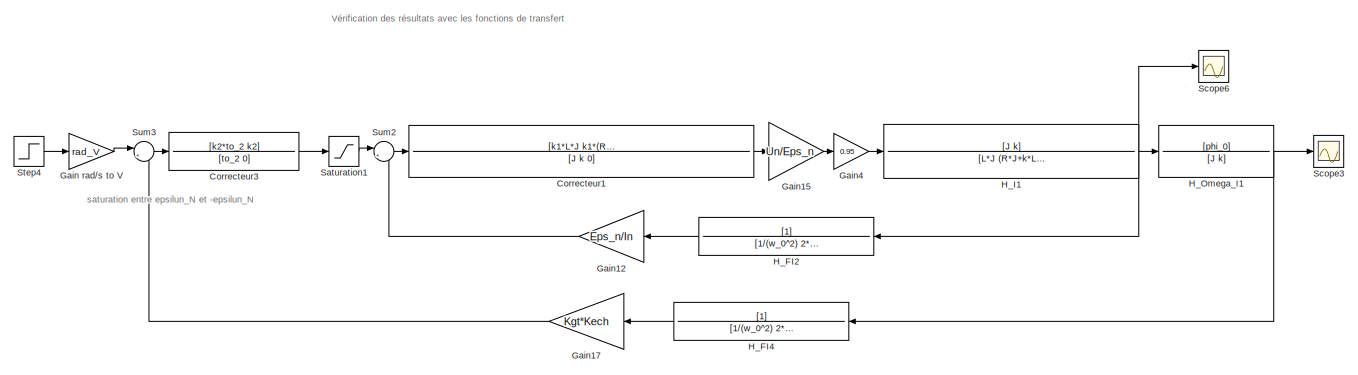
[diagram: root canvas - part 1/2, full width, top band]
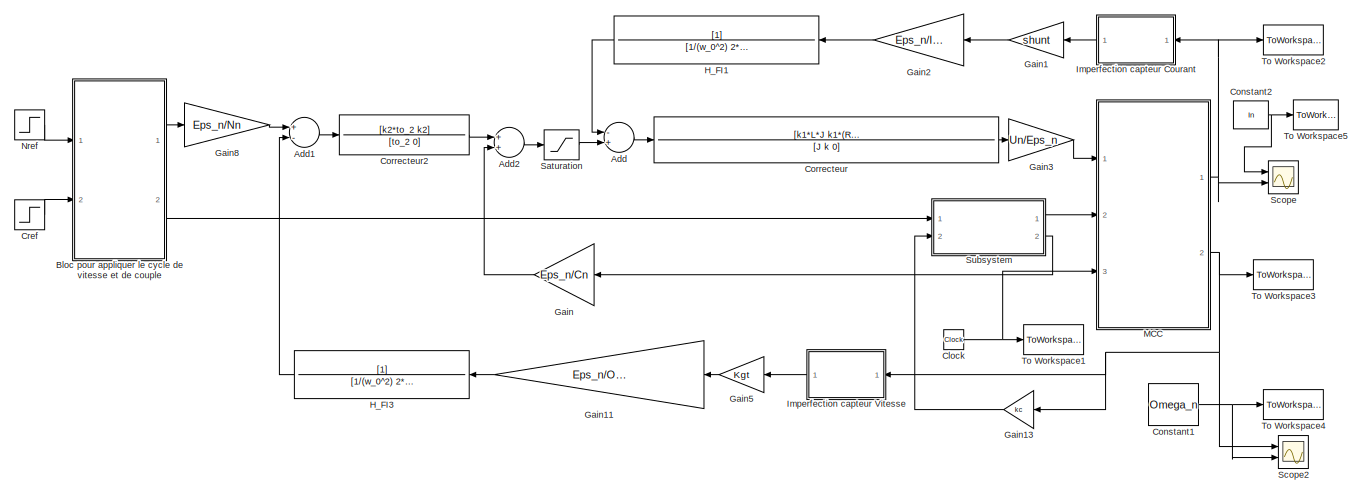
[diagram: root canvas - part 2/2, full width, bottom band]
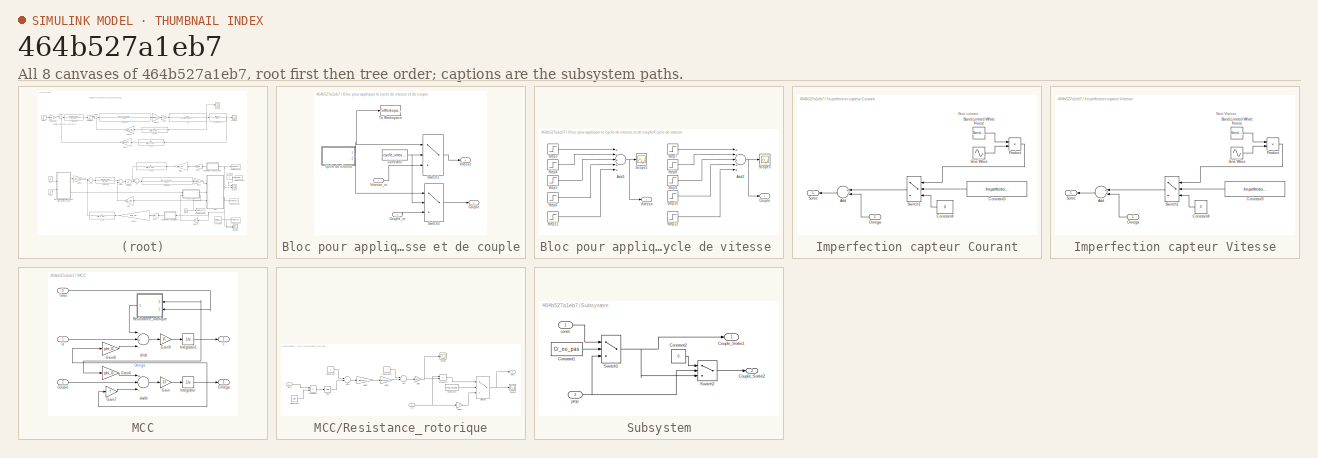
[diagram: thumbnail index - all 8 canvases of the model, root first then tree order]
MODEL slx_464b527a1eb7
KIND model
CONFIG AbsTol = auto
CONFIG EnableMultiTasking = off
CONFIG FixedStep = 1e-3
CONFIG MaxStep = auto
CONFIG MinStep = auto
CONFIG RelTol = 1e-3
CONFIG SampleTimeConstraint = Unconstrained
CONFIG Solver = FixedStepAuto
CONFIG SolverName = FixedStepAuto
CONFIG StartTime = 0.0
CONFIG StopTime = T_sim
BLOCK [Sum] Add
  InputSameDT = off
  Inputs = -+
  OutDataTypeStr = Inherit: Inherit via internal rule
  Ports = [2, 1]
  SaturateOnIntegerOverflow = off
BLOCK [Sum] Add1
  InputSameDT = off
  Inputs = +-
  OutDataTypeStr = Inherit: Inherit via internal rule
  Ports = [2, 1]
  SaturateOnIntegerOverflow = off
BLOCK [Sum] Add2
  InputSameDT = off
  OutDataTypeStr = Inherit: Inherit via internal rule
  Ports = [2, 1]
  SaturateOnIntegerOverflow = off
BLOCK [SubSystem] Bloc pour appliquer le cycle de vitesse et de couple
  Ports = [2, 2]
  RequestExecContextInheritance = off
BLOCK [Constant] Bloc pour appliquer le cycle de vitesse et de couple/Constant
  Value = cycle_vitesse
BLOCK [Outport] Bloc pour appliquer le cycle de vitesse et de couple/Couple
  IconDisplay = Port number
  Port = 2
BLOCK [Inport] Bloc pour appliquer le cycle de vitesse et de couple/Couple_in
  IconDisplay = Port number
  Port = 2
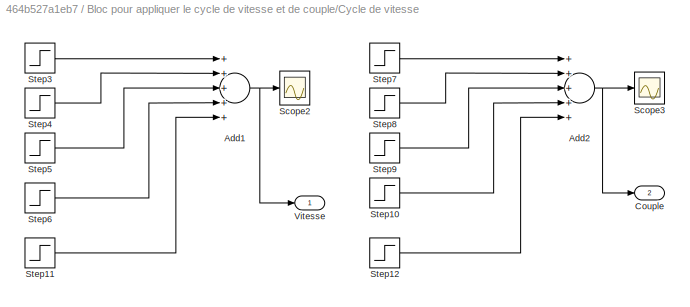
BLOCK [SubSystem] Bloc pour appliquer le cycle de vitesse et de couple/Cycle de vitesse 
  Ports = [0, 2]
  RequestExecContextInheritance = off
BLOCK [Sum] Bloc pour appliquer le cycle de vitesse et de couple/Cycle de vitesse /Add1
  InputSameDT = off
  Inputs = +++++
  OutDataTypeStr = Inherit: Inherit via internal rule
  Ports = [5, 1]
  SaturateOnIntegerOverflow = off
BLOCK [Sum] Bloc pour appliquer le cycle de vitesse et de couple/Cycle de vitesse /Add2
  InputSameDT = off
  Inputs = +++++
  OutDataTypeStr = Inherit: Inherit via internal rule
  Ports = [5, 1]
  SaturateOnIntegerOverflow = off
BLOCK [Outport] Bloc pour appliquer le cycle de vitesse et de couple/Cycle de vitesse /Couple 
  IconDisplay = Port number
  Port = 2
BLOCK [Scope] Bloc pour appliquer le cycle de vitesse et de couple/Cycle de vitesse /Scope2
  Floating = off
  NumInputPorts = 1
  Ports = [1]
  ScopeSpecificationString = Simulink.scopes.TimeScopeBlockCfg('CurrentConfiguration', extmgr.ConfigurationSet(extmgr.Configuration('Core','General UI',true),extmgr.Configuration('Core','Source UI',true),extmgr.Configuration('Sources','WiredSimulink',true,'DataLoggingVariableName','ScopeData1'),extmgr.Configuration('Visuals','Time Domain',true,'SerializedDisplays',{struct('MinYLimReal','-4237.5','MaxYLimReal','4237.5','YLabel...<+2074ch>
BLOCK [Scope] Bloc pour appliquer le cycle de vitesse et de couple/Cycle de vitesse /Scope3
  Floating = off
  NumInputPorts = 1
  Ports = [1]
  ScopeSpecificationString = Simulink.scopes.TimeScopeBlockCfg('CurrentConfiguration', extmgr.ConfigurationSet(extmgr.Configuration('Core','General UI',true),extmgr.Configuration('Core','Source UI',true),extmgr.Configuration('Sources','WiredSimulink',true,'DataLoggingVariableName','ScopeData2'),extmgr.Configuration('Visuals','Time Domain',true,'SerializedDisplays',{struct('MinYLimReal','-130.00000','MaxYLimReal','130.00000','...<+1454ch>
BLOCK [Step] Bloc pour appliquer le cycle de vitesse et de couple/Cycle de vitesse /Step10
  After = Cn*(1/100-1/2)
  SampleTime = 0
  Time = Cycle+30
BLOCK [Step] Bloc pour appliquer le cycle de vitesse et de couple/Cycle de vitesse /Step11
  After = -Nn/100
  SampleTime = 0
  Time = Cycle+35
BLOCK [Step] Bloc pour appliquer le cycle de vitesse et de couple/Cycle de vitesse /Step12
  After = -Cn/100
  SampleTime = 0
  Time = Cycle+40
BLOCK [Step] Bloc pour appliquer le cycle de vitesse et de couple/Cycle de vitesse /Step3
  After = Nn
  SampleTime = 0
  Time = Cycle
BLOCK [Step] Bloc pour appliquer le cycle de vitesse et de couple/Cycle de vitesse /Step4
  After = -Nn*2
  SampleTime = 0
  Time = Cycle+10
BLOCK [Step] Bloc pour appliquer le cycle de vitesse et de couple/Cycle de vitesse /Step5
  After = 3/2*Nn
  SampleTime = 0
  Time = Cycle+20
BLOCK [Step] Bloc pour appliquer le cycle de vitesse et de couple/Cycle de vitesse /Step6
  After = Nn*(1/100-1/2)
  SampleTime = 0
  Time = Cycle+25
BLOCK [Step] Bloc pour appliquer le cycle de vitesse et de couple/Cycle de vitesse /Step7
  After = Cn
  SampleTime = 0
  Time = Cycle+5
BLOCK [Step] Bloc pour appliquer le cycle de vitesse et de couple/Cycle de vitesse /Step8
  After = -Cn*2
  SampleTime = 0
  Time = Cycle+15
BLOCK [Step] Bloc pour appliquer le cycle de vitesse et de couple/Cycle de vitesse /Step9
  After = 3/2*Cn
  SampleTime = 0
  Time = Cycle+25
BLOCK [Outport] Bloc pour appliquer le cycle de vitesse et de couple/Cycle de vitesse /Vitesse 
  IconDisplay = Port number
BLOCK [Switch] Bloc pour appliquer le cycle de vitesse et de couple/Switch1
  Criteria = u2 > Threshold
  InputSameDT = off
  SaturateOnIntegerOverflow = off
BLOCK [Switch] Bloc pour appliquer le cycle de vitesse et de couple/Switch2
  Criteria = u2 > Threshold
  InputSameDT = off
  SaturateOnIntegerOverflow = off
BLOCK [ToWorkspace] Bloc pour appliquer le cycle de vitesse et de couple/To Workspace
  FixptAsFi = on
  MaxDataPoints = inf
  Ports = [1]
  SampleTime = -1
  Save2DSignal = 3-D array (concatenate along third dimension)
  VariableName = CV_ref
BLOCK [Outport] Bloc pour appliquer le cycle de vitesse et de couple/Vitesse
  IconDisplay = Port number
BLOCK [Inport] Bloc pour appliquer le cycle de vitesse et de couple/Vitesse_in
  IconDisplay = Port number
BLOCK [Clock] Clock
BLOCK [Constant] Constant1
  Value = Omega_n
BLOCK [Constant] Constant2
  Value = In
BLOCK [TransferFcn] Correcteur
  Denominator = [J k 0]
  Numerator = [k1*L*J k1*(R*J+k*L) k1*(phi_0^2+k*R)]
BLOCK [TransferFcn] Correcteur1
  Denominator = [J k 0]
  Numerator = [k1*L*J k1*(R*J+k*L) k1*(phi_0^2+k*R)]
BLOCK [TransferFcn] Correcteur2
  Denominator = [to_2 0]
  Numerator = [k2*to_2 k2]
BLOCK [TransferFcn] Correcteur3
  Denominator = [to_2 0]
  Numerator = [k2*to_2 k2]
BLOCK [Step] Cref
  After = Cref
  SampleTime = 0
  Time = 5
BLOCK [Gain] Gain
  Gain = Eps_n/Cn
  OutDataTypeStr = Inherit: Inherit via internal rule
  ParamDataTypeStr = Inherit: Inherit via internal rule
  SaturateOnIntegerOverflow = off
BLOCK [Gain] Gain rad//s to V
  Gain = rad_V
  OutDataTypeStr = Inherit: Inherit via internal rule
  ParamDataTypeStr = Inherit: Inherit via internal rule
  SaturateOnIntegerOverflow = off
BLOCK [Gain] Gain1
  Gain = shunt
  OutDataTypeStr = Inherit: Inherit via internal rule
  ParamDataTypeStr = Inherit: Inherit via internal rule
  SaturateOnIntegerOverflow = off
BLOCK [Gain] Gain11
  Gain = Eps_n/Omega_n/Kgt
  OutDataTypeStr = Inherit: Inherit via internal rule
  ParamDataTypeStr = Inherit: Inherit via internal rule
  SaturateOnIntegerOverflow = off
BLOCK [Gain] Gain12
  Gain = Eps_n/In
  OutDataTypeStr = Inherit: Inherit via internal rule
  ParamDataTypeStr = Inherit: Inherit via internal rule
  SaturateOnIntegerOverflow = off
BLOCK [Gain] Gain13
  Gain = kc
  OutDataTypeStr = Inherit: Inherit via internal rule
  ParamDataTypeStr = Inherit: Inherit via internal rule
  SaturateOnIntegerOverflow = off
BLOCK [Gain] Gain15
  Gain = Un/Eps_n
  OutDataTypeStr = Inherit: Inherit via internal rule
  ParamDataTypeStr = Inherit: Inherit via internal rule
  SaturateOnIntegerOverflow = off
BLOCK [Gain] Gain17
  Gain = Kgt*Kech
  OutDataTypeStr = Inherit: Inherit via internal rule
  ParamDataTypeStr = Inherit: Inherit via internal rule
  SaturateOnIntegerOverflow = off
BLOCK [Gain] Gain2
  Gain = Eps_n/In/shunt
  OutDataTypeStr = Inherit: Inherit via internal rule
  ParamDataTypeStr = Inherit: Inherit via internal rule
  SaturateOnIntegerOverflow = off
BLOCK [Gain] Gain3
  Gain = Un/Eps_n
  OutDataTypeStr = Inherit: Inherit via internal rule
  ParamDataTypeStr = Inherit: Inherit via internal rule
  SaturateOnIntegerOverflow = off
BLOCK [Gain] Gain4
  Gain = 0.95
  OutDataTypeStr = Inherit: Inherit via internal rule
  ParamDataTypeStr = Inherit: Inherit via internal rule
  SaturateOnIntegerOverflow = off
BLOCK [Gain] Gain5
  Gain = Kgt
  OutDataTypeStr = Inherit: Inherit via internal rule
  ParamDataTypeStr = Inherit: Inherit via internal rule
  SaturateOnIntegerOverflow = off
BLOCK [Gain] Gain8
  Gain = Eps_n/Nn
  OutDataTypeStr = Inherit: Inherit via internal rule
  ParamDataTypeStr = Inherit: Inherit via internal rule
  SaturateOnIntegerOverflow = off
BLOCK [TransferFcn] H_FI1
  Denominator = [1/(w_0^2) 2*xi/w_0 1]
BLOCK [TransferFcn] H_FI2
  Denominator = [1/(w_0^2) 2*xi/w_0 1]
BLOCK [TransferFcn] H_FI3
  Denominator = [1/(w_0^2) 2*xi/w_0 1]
BLOCK [TransferFcn] H_FI4
  Denominator = [1/(w_0^2) 2*xi/w_0 1]
BLOCK [TransferFcn] H_I1
  Denominator = [L*J (R*J+k*L) phi_0^2+k*R]
  Numerator = [J k]
BLOCK [TransferFcn] H_Omega_I1
  Denominator = [J k]
  Numerator = [phi_0]
BLOCK [SubSystem] Imperfection capteur Courant
  Ports = [1, 1]
  RequestExecContextInheritance = off
BLOCK [Sum] Imperfection capteur Courant/Add
  InputSameDT = off
  OutDataTypeStr = Inherit: Inherit via internal rule
  Ports = [2, 1]
  SaturateOnIntegerOverflow = off
BLOCK [Reference] Imperfection capteur Courant/Band-Limited White Noise  REF=simulink/Sources/Band-Limited
White Noise
  Ports = [0, 1]
  SourceBlock = simulink/Sources/Band-Limited\nWhite Noise
  SourceProductBaseCode = SL
  SourceProductName = Simulink
  SourceType = Band-Limited White Noise.
BLOCK [Constant] Imperfection capteur Courant/Constant3
  Value = Imperfection_capteur_ou_pas
BLOCK [Constant] Imperfection capteur Courant/Constant4
  Value = 0
BLOCK [Inport] Imperfection capteur Courant/Omega
  IconDisplay = Port number
BLOCK [Product] Imperfection capteur Courant/Product
  InputSameDT = off
  OutDataTypeStr = Inherit: Inherit via internal rule
  Ports = [2, 1]
  RndMeth = Floor
  SaturateOnIntegerOverflow = off
BLOCK [Sin] Imperfection capteur Courant/Sine Wave
  Amplitude = In/100
  Frequency = 2*pi*50
  Ports = [0, 1]
  SampleTime = 0
BLOCK [Outport] Imperfection capteur Courant/Sortie
  IconDisplay = Port number
BLOCK [Switch] Imperfection capteur Courant/Switch1
  Criteria = u2 > Threshold
  InputSameDT = off
  SaturateOnIntegerOverflow = off
BLOCK [SubSystem] Imperfection capteur Vitesse
  Ports = [1, 1]
  RequestExecContextInheritance = off
BLOCK [Sum] Imperfection capteur Vitesse/Add
  InputSameDT = off
  OutDataTypeStr = Inherit: Inherit via internal rule
  Ports = [2, 1]
  SaturateOnIntegerOverflow = off
BLOCK [Reference] Imperfection capteur Vitesse/Band-Limited White Noise  REF=simulink/Sources/Band-Limited
White Noise
  Ports = [0, 1]
  SourceBlock = simulink/Sources/Band-Limited\nWhite Noise
  SourceProductBaseCode = SL
  SourceProductName = Simulink
  SourceType = Band-Limited White Noise.
BLOCK [Constant] Imperfection capteur Vitesse/Constant3
  Value = Imperfection_capteur_ou_pas
BLOCK [Constant] Imperfection capteur Vitesse/Constant4
  Value = 0
BLOCK [Inport] Imperfection capteur Vitesse/Omega
  IconDisplay = Port number
BLOCK [Product] Imperfection capteur Vitesse/Product
  InputSameDT = off
  OutDataTypeStr = Inherit: Inherit via internal rule
  Ports = [2, 1]
  RndMeth = Floor
  SaturateOnIntegerOverflow = off
BLOCK [Sin] Imperfection capteur Vitesse/Sine Wave
  Amplitude = Omega_n/100
  Frequency = 2*pi*50
  Ports = [0, 1]
  SampleTime = 0
BLOCK [Outport] Imperfection capteur Vitesse/Sortie
  IconDisplay = Port number
BLOCK [Switch] Imperfection capteur Vitesse/Switch1
  Criteria = u2 > Threshold
  InputSameDT = off
  SaturateOnIntegerOverflow = off
BLOCK [SubSystem] MCC
  Ports = [3, 2]
  RequestExecContextInheritance = off
BLOCK [Inport] MCC/Couple
  IconDisplay = Port number
  Port = 2
BLOCK [Gain] MCC/Gain
  Gain = 1/J
  OutDataTypeStr = Inherit: Inherit via internal rule
  ParamDataTypeStr = Inherit: Inherit via internal rule
  SaturateOnIntegerOverflow = off
BLOCK [Gain] MCC/Gain6
  Gain = phi_0
  OutDataTypeStr = Inherit: Inherit via internal rule
  ParamDataTypeStr = Inherit: Inherit via internal rule
  SaturateOnIntegerOverflow = off
BLOCK [Gain] MCC/Gain7
  Gain = f
  OutDataTypeStr = Inherit: Inherit via internal rule
  ParamDataTypeStr = Inherit: Inherit via internal rule
  SaturateOnIntegerOverflow = off
BLOCK [Gain] MCC/Gain8
  Gain = phi_0
  OutDataTypeStr = Inherit: Inherit via internal rule
  ParamDataTypeStr = Inherit: Inherit via internal rule
  SaturateOnIntegerOverflow = off
BLOCK [Gain] MCC/Gain9
  Gain = 1/L
  OutDataTypeStr = Inherit: Inherit via internal rule
  ParamDataTypeStr = Inherit: Inherit via internal rule
  SaturateOnIntegerOverflow = off
BLOCK [Outport] MCC/I
  IconDisplay = Port number
BLOCK [Integrator] MCC/Integrator
  Ports = [1, 1]
BLOCK [Integrator] MCC/Integrator1
  Ports = [1, 1]
BLOCK [Outport] MCC/Omega
  IconDisplay = Port number
  Port = 2
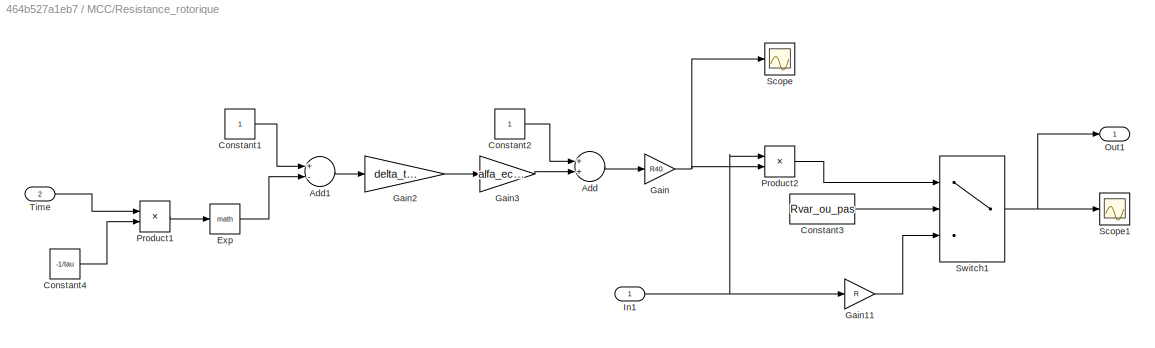
BLOCK [SubSystem] MCC/Resistance_rotorique
  Ports = [2, 1]
  RequestExecContextInheritance = off
BLOCK [Sum] MCC/Resistance_rotorique/Add
  InputSameDT = off
  OutDataTypeStr = Inherit: Inherit via internal rule
  Ports = [2, 1]
  SaturateOnIntegerOverflow = off
BLOCK [Sum] MCC/Resistance_rotorique/Add1
  InputSameDT = off
  Inputs = +-
  OutDataTypeStr = Inherit: Inherit via internal rule
  Ports = [2, 1]
  SaturateOnIntegerOverflow = off
BLOCK [Constant] MCC/Resistance_rotorique/Constant1
BLOCK [Constant] MCC/Resistance_rotorique/Constant2
BLOCK [Constant] MCC/Resistance_rotorique/Constant3
  Value = Rvar_ou_pas
BLOCK [Constant] MCC/Resistance_rotorique/Constant4
  Value = -1/tau
BLOCK [Math] MCC/Resistance_rotorique/Exp
  Ports = [1, 1]
BLOCK [Gain] MCC/Resistance_rotorique/Gain
  Gain = R40
  OutDataTypeStr = Inherit: Inherit via internal rule
  ParamDataTypeStr = Inherit: Inherit via internal rule
  SaturateOnIntegerOverflow = off
BLOCK [Gain] MCC/Resistance_rotorique/Gain11
  Gain = R
  OutDataTypeStr = Inherit: Inherit via internal rule
  ParamDataTypeStr = Inherit: Inherit via internal rule
  SaturateOnIntegerOverflow = off
BLOCK [Gain] MCC/Resistance_rotorique/Gain2
  Gain = delta_teta
  OutDataTypeStr = Inherit: Inherit via internal rule
  ParamDataTypeStr = Inherit: Inherit via internal rule
  SaturateOnIntegerOverflow = off
BLOCK [Gain] MCC/Resistance_rotorique/Gain3
  Gain = alfa_echauffement
  OutDataTypeStr = Inherit: Inherit via internal rule
  ParamDataTypeStr = Inherit: Inherit via internal rule
  SaturateOnIntegerOverflow = off
BLOCK [Inport] MCC/Resistance_rotorique/In1
  IconDisplay = Port number
BLOCK [Outport] MCC/Resistance_rotorique/Out1
  IconDisplay = Port number
BLOCK [Product] MCC/Resistance_rotorique/Product1
  InputSameDT = off
  OutDataTypeStr = Inherit: Inherit via internal rule
  Ports = [2, 1]
  RndMeth = Floor
  SaturateOnIntegerOverflow = off
BLOCK [Product] MCC/Resistance_rotorique/Product2
  InputSameDT = off
  OutDataTypeStr = Inherit: Inherit via internal rule
  Ports = [2, 1]
  RndMeth = Floor
  SaturateOnIntegerOverflow = off
BLOCK [Scope] MCC/Resistance_rotorique/Scope
  Floating = off
  NumInputPorts = 1
  Ports = [1]
  ScopeSpecificationString = Simulink.scopes.TimeScopeBlockCfg('CurrentConfiguration', extmgr.ConfigurationSet(extmgr.Configuration('Core','General UI',true),extmgr.Configuration('Core','Source UI',true),extmgr.Configuration('Sources','WiredSimulink',true),extmgr.Configuration('Visuals','Time Domain',true,'SerializedDisplays',{struct('MinYLimReal','0.47385','MaxYLimReal','0.65846','YLabelReal','','MinYLimMag','0.47385','MaxYL...<+1322ch>
BLOCK [Scope] MCC/Resistance_rotorique/Scope1
  Floating = off
  NumInputPorts = 1
  Ports = [1]
  ScopeSpecificationString = Simulink.scopes.TimeScopeBlockCfg('CurrentConfiguration', extmgr.ConfigurationSet(extmgr.Configuration('Core','General UI',true),extmgr.Configuration('Core','Source UI',true),extmgr.Configuration('Sources','WiredSimulink',true,'DataLoggingVariableName','ScopeData1'),extmgr.Configuration('Visuals','Time Domain',true,'SerializedDisplays',{struct('MinYLimReal','-8.36184','MaxYLimReal','75.25656','YLa...<+1395ch>
BLOCK [Switch] MCC/Resistance_rotorique/Switch1
  Criteria = u2 > Threshold
  InputSameDT = off
  SaturateOnIntegerOverflow = off
BLOCK [Inport] MCC/Resistance_rotorique/Time
  IconDisplay = Port number
  Port = 2
BLOCK [Inport] MCC/Time
  IconDisplay = Port number
  Port = 3
BLOCK [Inport] MCC/U
  IconDisplay = Port number
BLOCK [Sum] MCC/di//dt
  InputSameDT = off
  Inputs = -+-
  OutDataTypeStr = Inherit: Inherit via internal rule
  Ports = [3, 1]
  SaturateOnIntegerOverflow = off
BLOCK [Sum] MCC/dw//dt
  InputSameDT = off
  Inputs = +--
  OutDataTypeStr = Inherit: Inherit via internal rule
  Ports = [3, 1]
  SaturateOnIntegerOverflow = off
BLOCK [Step] Nref
  After = Nref
  SampleTime = 0
  Time = 0
BLOCK [Saturate] Saturation
  InputPortMap = u0
  LowerLimit = -Eps_n
  Ports = [1, 1]
  UpperLimit = Eps_n
BLOCK [Saturate] Saturation1
  InputPortMap = u0
  LowerLimit = -Eps_n
  Ports = [1, 1]
  UpperLimit = Eps_n
BLOCK [Scope] Scope
  Floating = off
  NumInputPorts = 2
  Ports = [2]
  ScopeSpecificationString = Simulink.scopes.TimeScopeBlockCfg('CurrentConfiguration', extmgr.ConfigurationSet(extmgr.Configuration('Core','General UI',true),extmgr.Configuration('Core','Source UI',true),extmgr.Configuration('Sources','WiredSimulink',true,'DataLoggingVariableName','ScopeData1'),extmgr.Configuration('Visuals','Time Domain',true,'SerializedDisplays',{struct('MinYLimReal','-171.00649','MaxYLimReal','138.59854','...<+1462ch>
BLOCK [Scope] Scope2
  Floating = off
  NumInputPorts = 2
  Ports = [2]
  ScopeSpecificationString = Simulink.scopes.TimeScopeBlockCfg('CurrentConfiguration', extmgr.ConfigurationSet(extmgr.Configuration('Core','General UI',true),extmgr.Configuration('Core','Source UI',true),extmgr.Configuration('Sources','WiredSimulink',true,'DataLoggingVariableName','ScopeData3'),extmgr.Configuration('Visuals','Time Domain',true,'SerializedDisplays',{struct('MinYLimReal','-453.08556','MaxYLimReal','444.78725','...<+1465ch>
BLOCK [Scope] Scope3
  Floating = off
  NumInputPorts = 1
  Ports = [1]
  ScopeSpecificationString = Simulink.scopes.TimeScopeBlockCfg('CurrentConfiguration', extmgr.ConfigurationSet(extmgr.Configuration('Core','General UI',true),extmgr.Configuration('Core','Source UI',true),extmgr.Configuration('Sources','WiredSimulink',true,'DataLoggingVariableName','ScopeData1'),extmgr.Configuration('Visuals','Time Domain',true,'SerializedDisplays',{struct('MinYLimReal','-44.37324','MaxYLimReal','399.35919','Y...<+1379ch>
BLOCK [Scope] Scope6
  Floating = off
  NumInputPorts = 1
  Ports = [1]
  ScopeSpecificationString = Simulink.scopes.TimeScopeBlockCfg('CurrentConfiguration', extmgr.ConfigurationSet(extmgr.Configuration('Core','General UI',true),extmgr.Configuration('Core','Source UI',true),extmgr.Configuration('Sources','WiredSimulink',true,'DataLoggingVariableName','ScopeData2'),extmgr.Configuration('Visuals','Time Domain',true,'SerializedDisplays',{struct('MinYLimReal','36.0961','MaxYLimReal','90.87986','YLab...<+1412ch>
BLOCK [Step] Step4
  After = Omega_n
  SampleTime = 0
BLOCK [SubSystem] Subsystem
  Ports = [2, 2]
  RequestExecContextInheritance = off
BLOCK [Constant] Subsystem/Constant1
  Value = Cr_ou_pas
BLOCK [Constant] Subsystem/Constant2
  Value = 0
BLOCK [Outport] Subsystem/Couple_Sortie1
  IconDisplay = Port number
BLOCK [Outport] Subsystem/Couple_Sortie2
  IconDisplay = Port number
  Port = 2
BLOCK [Switch] Subsystem/Switch1
  Criteria = u2 > Threshold
  InputSameDT = off
  SaturateOnIntegerOverflow = off
BLOCK [Switch] Subsystem/Switch2
  Criteria = u2 > Threshold
  InputSameDT = off
  SaturateOnIntegerOverflow = off
BLOCK [Inport] Subsystem/const
  IconDisplay = Port number
BLOCK [Inport] Subsystem/prop
  IconDisplay = Port number
  Port = 2
BLOCK [Sum] Sum2
  IconShape = round
  InputSameDT = off
  Inputs = |+-
  OutDataTypeStr = Inherit: Inherit via internal rule
  Ports = [2, 1]
  SaturateOnIntegerOverflow = off
BLOCK [Sum] Sum3
  IconShape = round
  InputSameDT = off
  Inputs = |+-
  OutDataTypeStr = Inherit: Inherit via internal rule
  Ports = [2, 1]
  SaturateOnIntegerOverflow = off
BLOCK [ToWorkspace] To Workspace1
  FixptAsFi = on
  MaxDataPoints = inf
  Ports = [1]
  SampleTime = -1
  Save2DSignal = 3-D array (concatenate along third dimension)
  VariableName = t
BLOCK [ToWorkspace] To Workspace2
  FixptAsFi = on
  MaxDataPoints = inf
  Ports = [1]
  SampleTime = -1
  Save2DSignal = 3-D array (concatenate along third dimension)
  VariableName = I
BLOCK [ToWorkspace] To Workspace3
  FixptAsFi = on
  MaxDataPoints = inf
  Ports = [1]
  SampleTime = -1
  Save2DSignal = 3-D array (concatenate along third dimension)
  VariableName = Omega
BLOCK [ToWorkspace] To Workspace4
  FixptAsFi = on
  MaxDataPoints = inf
  Ports = [1]
  SampleTime = -1
  Save2DSignal = 3-D array (concatenate along third dimension)
  VariableName = Omega_ref
BLOCK [ToWorkspace] To Workspace5
  FixptAsFi = on
  MaxDataPoints = inf
  Ports = [1]
  SampleTime = -1
  Save2DSignal = 3-D array (concatenate along third dimension)
  VariableName = Inn
ANNOTATION (root): Vérification des résultats avec les fonctions de transfert
ANNOTATION (root): saturation entre epsilun_N et -epsilun_N
ANNOTATION Imperfection capteur Courant: Bruit courant
ANNOTATION Imperfection capteur Vitesse: Bruit Vitesse
LINE Add1:1 -> Correcteur2:1
LINE Add2:1 -> Saturation:1
LINE Add:1 -> Correcteur:1
NET Bloc pour appliquer le cycle de vitesse et de couple/Constant:1 -> Bloc pour appliquer le cycle de vitesse et de couple/Switch1:2, Bloc pour appliquer le cycle de vitesse et de couple/Switch2:2
LINE Bloc pour appliquer le cycle de vitesse et de couple/Couple_in:1 -> Bloc pour appliquer le cycle de vitesse et de couple/Switch2:3
NET Bloc pour appliquer le cycle de vitesse et de couple/Cycle de vitesse /Add1:1 -> Bloc pour appliquer le cycle de vitesse et de couple/Cycle de vitesse /Scope2:1, Bloc pour appliquer le cycle de vitesse et de couple/Cycle de vitesse /Vitesse :1
NET Bloc pour appliquer le cycle de vitesse et de couple/Cycle de vitesse /Add2:1 -> Bloc pour appliquer le cycle de vitesse et de couple/Cycle de vitesse /Couple :1, Bloc pour appliquer le cycle de vitesse et de couple/Cycle de vitesse /Scope3:1
LINE Bloc pour appliquer le cycle de vitesse et de couple/Cycle de vitesse /Step10:1 -> Bloc pour appliquer le cycle de vitesse et de couple/Cycle de vitesse /Add2:4
LINE Bloc pour appliquer le cycle de vitesse et de couple/Cycle de vitesse /Step11:1 -> Bloc pour appliquer le cycle de vitesse et de couple/Cycle de vitesse /Add1:5
LINE Bloc pour appliquer le cycle de vitesse et de couple/Cycle de vitesse /Step12:1 -> Bloc pour appliquer le cycle de vitesse et de couple/Cycle de vitesse /Add2:5
LINE Bloc pour appliquer le cycle de vitesse et de couple/Cycle de vitesse /Step3:1 -> Bloc pour appliquer le cycle de vitesse et de couple/Cycle de vitesse /Add1:1
LINE Bloc pour appliquer le cycle de vitesse et de couple/Cycle de vitesse /Step4:1 -> Bloc pour appliquer le cycle de vitesse et de couple/Cycle de vitesse /Add1:2
LINE Bloc pour appliquer le cycle de vitesse et de couple/Cycle de vitesse /Step5:1 -> Bloc pour appliquer le cycle de vitesse et de couple/Cycle de vitesse /Add1:3
LINE Bloc pour appliquer le cycle de vitesse et de couple/Cycle de vitesse /Step6:1 -> Bloc pour appliquer le cycle de vitesse et de couple/Cycle de vitesse /Add1:4
LINE Bloc pour appliquer le cycle de vitesse et de couple/Cycle de vitesse /Step7:1 -> Bloc pour appliquer le cycle de vitesse et de couple/Cycle de vitesse /Add2:1
LINE Bloc pour appliquer le cycle de vitesse et de couple/Cycle de vitesse /Step8:1 -> Bloc pour appliquer le cycle de vitesse et de couple/Cycle de vitesse /Add2:2
LINE Bloc pour appliquer le cycle de vitesse et de couple/Cycle de vitesse /Step9:1 -> Bloc pour appliquer le cycle de vitesse et de couple/Cycle de vitesse /Add2:3
NET Bloc pour appliquer le cycle de vitesse et de couple/Cycle de vitesse :1 -> Bloc pour appliquer le cycle de vitesse et de couple/Switch1:1, Bloc pour appliquer le cycle de vitesse et de couple/To Workspace:1
LINE Bloc pour appliquer le cycle de vitesse et de couple/Cycle de vitesse :2 -> Bloc pour appliquer le cycle de vitesse et de couple/Switch2:1
LINE Bloc pour appliquer le cycle de vitesse et de couple/Switch1:1 -> Bloc pour appliquer le cycle de vitesse et de couple/Vitesse:1
LINE Bloc pour appliquer le cycle de vitesse et de couple/Switch2:1 -> Bloc pour appliquer le cycle de vitesse et de couple/Couple:1
LINE Bloc pour appliquer le cycle de vitesse et de couple/Vitesse_in:1 -> Bloc pour appliquer le cycle de vitesse et de couple/Switch1:3
LINE Bloc pour appliquer le cycle de vitesse et de couple:1 -> Gain8:1
LINE Bloc pour appliquer le cycle de vitesse et de couple:2 -> Subsystem:1
NET Clock:1 -> MCC:3, To Workspace1:1
NET Constant1:1 -> Scope2:2, To Workspace4:1
NET Constant2:1 -> Scope:1, To Workspace5:1
LINE Correcteur1:1 -> Gain15:1
LINE Correcteur2:1 -> Add2:1
LINE Correcteur3:1 -> Saturation1:1
LINE Correcteur:1 -> Gain3:1
LINE Cref:1 -> Bloc pour appliquer le cycle de vitesse et de couple:2
LINE Gain rad//s to V:1 -> Sum3:1
LINE Gain11:1 -> H_FI3:1
LINE Gain12:1 -> Sum2:2
LINE Gain13:1 -> Subsystem:2
LINE Gain15:1 -> Gain4:1
LINE Gain17:1 -> Sum3:2
LINE Gain1:1 -> Gain2:1
LINE Gain2:1 -> H_FI1:1
LINE Gain3:1 -> MCC:1
LINE Gain4:1 -> H_I1:1
LINE Gain5:1 -> Gain11:1
LINE Gain8:1 -> Add1:1
LINE Gain:1 -> Add2:2
LINE H_FI1:1 -> Add:1
LINE H_FI2:1 -> Gain12:1
LINE H_FI3:1 -> Add1:2
LINE H_FI4:1 -> Gain17:1
NET H_I1:1 -> H_FI2:1, H_Omega_I1:1, Scope6:1
NET H_Omega_I1:1 -> H_FI4:1, Scope3:1
LINE Imperfection capteur Courant/Add:1 -> Imperfection capteur Courant/Sortie:1
LINE Imperfection capteur Courant/Band-Limited White Noise:1 -> Imperfection capteur Courant/Product:1
LINE Imperfection capteur Courant/Constant3:1 -> Imperfection capteur Courant/Switch1:2
LINE Imperfection capteur Courant/Constant4:1 -> Imperfection capteur Courant/Switch1:3
LINE Imperfection capteur Courant/Omega:1 -> Imperfection capteur Courant/Add:2
LINE Imperfection capteur Courant/Product:1 -> Imperfection capteur Courant/Switch1:1
LINE Imperfection capteur Courant/Sine Wave:1 -> Imperfection capteur Courant/Product:2
LINE Imperfection capteur Courant/Switch1:1 -> Imperfection capteur Courant/Add:1
LINE Imperfection capteur Courant:1 -> Gain1:1
LINE Imperfection capteur Vitesse/Add:1 -> Imperfection capteur Vitesse/Sortie:1
LINE Imperfection capteur Vitesse/Band-Limited White Noise:1 -> Imperfection capteur Vitesse/Product:1
LINE Imperfection capteur Vitesse/Constant3:1 -> Imperfection capteur Vitesse/Switch1:2
LINE Imperfection capteur Vitesse/Constant4:1 -> Imperfection capteur Vitesse/Switch1:3
LINE Imperfection capteur Vitesse/Omega:1 -> Imperfection capteur Vitesse/Add:2
LINE Imperfection capteur Vitesse/Product:1 -> Imperfection capteur Vitesse/Switch1:1
LINE Imperfection capteur Vitesse/Sine Wave:1 -> Imperfection capteur Vitesse/Product:2
LINE Imperfection capteur Vitesse/Switch1:1 -> Imperfection capteur Vitesse/Add:1
LINE Imperfection capteur Vitesse:1 -> Gain5:1
LINE MCC/Couple:1 -> MCC/dw//dt:2
LINE MCC/Gain6:1 -> MCC/dw//dt:1
LINE MCC/Gain7:1 -> MCC/dw//dt:3
LINE MCC/Gain8:1 -> MCC/di//dt:3
LINE MCC/Gain9:1 -> MCC/Integrator1:1
LINE MCC/Gain:1 -> MCC/Integrator:1
NET MCC/Integrator1:1 -> MCC/Gain6:1, MCC/I:1, MCC/Resistance_rotorique:1
NET MCC/Integrator:1 -> MCC/Gain7:1, MCC/Gain8:1, MCC/Omega:1
LINE MCC/Resistance_rotorique/Add1:1 -> MCC/Resistance_rotorique/Gain2:1
LINE MCC/Resistance_rotorique/Add:1 -> MCC/Resistance_rotorique/Gain:1
LINE MCC/Resistance_rotorique/Constant1:1 -> MCC/Resistance_rotorique/Add1:1
LINE MCC/Resistance_rotorique/Constant2:1 -> MCC/Resistance_rotorique/Add:1
LINE MCC/Resistance_rotorique/Constant3:1 -> MCC/Resistance_rotorique/Switch1:2
LINE MCC/Resistance_rotorique/Constant4:1 -> MCC/Resistance_rotorique/Product1:2
LINE MCC/Resistance_rotorique/Exp:1 -> MCC/Resistance_rotorique/Add1:2
LINE MCC/Resistance_rotorique/Gain11:1 -> MCC/Resistance_rotorique/Switch1:3
LINE MCC/Resistance_rotorique/Gain2:1 -> MCC/Resistance_rotorique/Gain3:1
LINE MCC/Resistance_rotorique/Gain3:1 -> MCC/Resistance_rotorique/Add:2
NET MCC/Resistance_rotorique/Gain:1 -> MCC/Resistance_rotorique/Product2:2, MCC/Resistance_rotorique/Scope:1
NET MCC/Resistance_rotorique/In1:1 -> MCC/Resistance_rotorique/Gain11:1, MCC/Resistance_rotorique/Product2:1
LINE MCC/Resistance_rotorique/Product1:1 -> MCC/Resistance_rotorique/Exp:1
LINE MCC/Resistance_rotorique/Product2:1 -> MCC/Resistance_rotorique/Switch1:1
NET MCC/Resistance_rotorique/Switch1:1 -> MCC/Resistance_rotorique/Out1:1, MCC/Resistance_rotorique/Scope1:1
LINE MCC/Resistance_rotorique/Time:1 -> MCC/Resistance_rotorique/Product1:1
LINE MCC/Resistance_rotorique:1 -> MCC/di//dt:1
LINE MCC/Time:1 -> MCC/Resistance_rotorique:2
LINE MCC/U:1 -> MCC/di//dt:2
LINE MCC/di//dt:1 -> MCC/Gain9:1
LINE MCC/dw//dt:1 -> MCC/Gain:1
NET MCC:1 -> Imperfection capteur Courant:1, Scope:2, To Workspace2:1
NET MCC:2 -> Gain13:1, Imperfection capteur Vitesse:1, Scope2:1, To Workspace3:1
LINE Nref:1 -> Bloc pour appliquer le cycle de vitesse et de couple:1
LINE Saturation1:1 -> Sum2:1
LINE Saturation:1 -> Add:2
LINE Step4:1 -> Gain rad//s to V:1
LINE Subsystem/Constant1:1 -> Subsystem/Switch1:2
LINE Subsystem/Constant2:1 -> Subsystem/Switch2:1
NET Subsystem/Switch1:1 -> Subsystem/Couple_Sortie1:1, Subsystem/Switch2:3
LINE Subsystem/Switch2:1 -> Subsystem/Couple_Sortie2:1
LINE Subsystem/const:1 -> Subsystem/Switch1:1
NET Subsystem/prop:1 -> Subsystem/Switch1:3, Subsystem/Switch2:2
LINE Subsystem:1 -> MCC:2
LINE Subsystem:2 -> Gain:1
LINE Sum2:1 -> Correcteur1:1
LINE Sum3:1 -> Correcteur3:1
note: NET lines group one-source signal fan-out (src -> all destinations, sorted); 1:1 wires keep LINE
